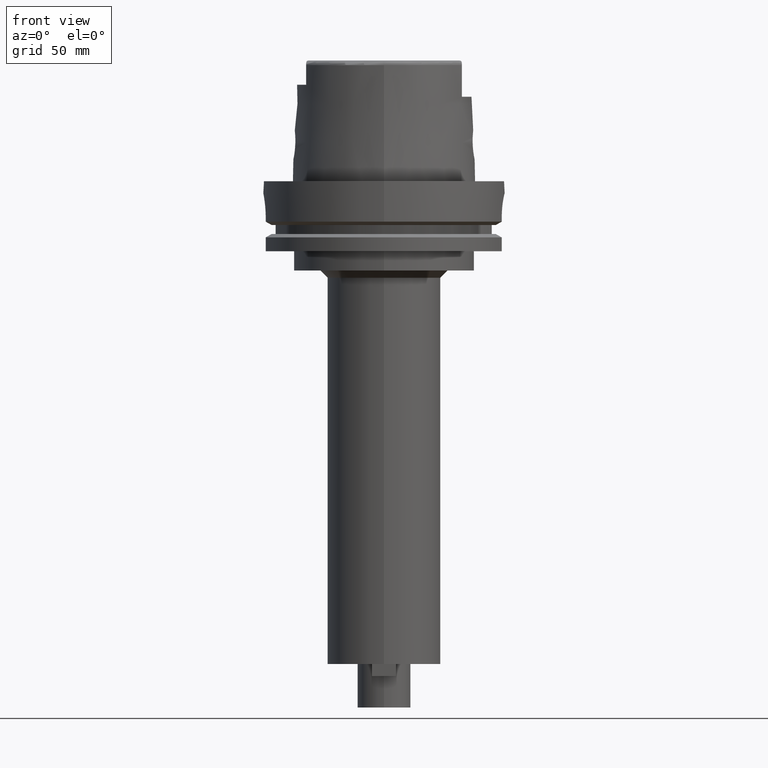
[diagram: clean part render]
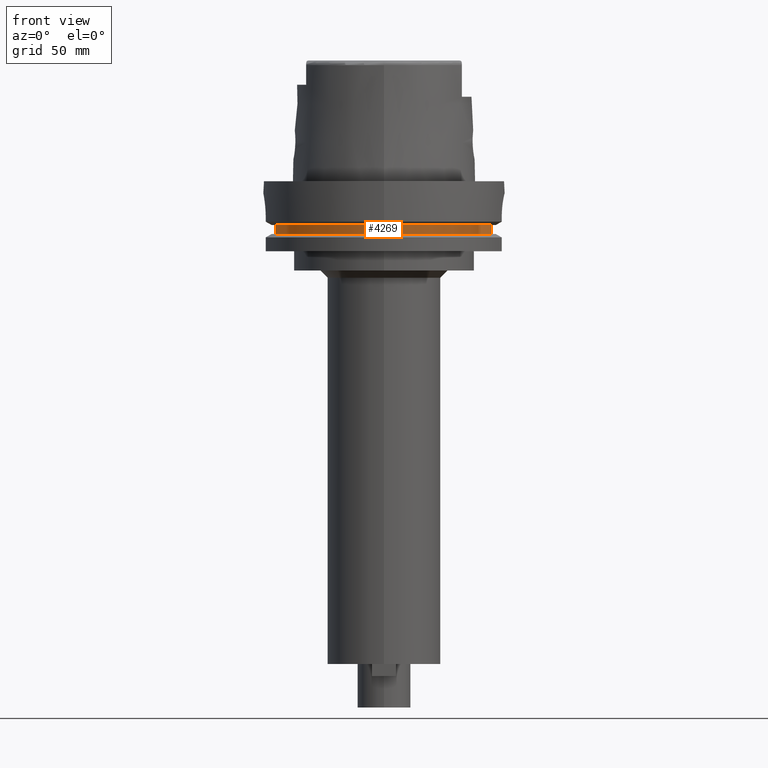
[diagram: same view with one face highlighted and labeled with its STEP entity id]
A machine part, front view. The second image highlights one B-rep face of the part: STEP entity #4269.
In plain terms, the highlighted cylindrical surface (partial cylindrical patch) has radius 46 mm, axis along (0, 0, 1).
Its self-contained STEP definition (entity closure, byte-faithful):
#1936=CARTESIAN_POINT('',(0.E0,0.E0,-1.8125E1));
#1937=DIRECTION('',(0.E0,0.E0,-1.E0));
#1938=DIRECTION('',(9.709874536577E-1,-2.391304347826E-1,0.E0));
#1939=AXIS2_PLACEMENT_3D('',#1936,#1937,#1938);
#1944=CARTESIAN_POINT('',(0.E0,0.E0,-1.8125E1));
#1945=DIRECTION('',(0.E0,0.E0,-1.E0));
#1946=DIRECTION('',(0.E0,-1.E0,0.E0));
#1947=AXIS2_PLACEMENT_3D('',#1944,#1945,#1946);
#1952=DIRECTION('',(0.E0,0.E0,1.E0));
#1953=VECTOR('',#1952,3.75E0);
#1954=CARTESIAN_POINT('',(-4.489988864129E1,-1.E1,-2.1875E1));
#1955=LINE('',#1954,#1953);
#1959=DIRECTION('',(-1.136868377216E-14,0.E0,-1.E0));
#1960=VECTOR('',#1959,3.75E0);
#1961=CARTESIAN_POINT('',(4.466542286825E1,-1.1E1,-1.8125E1));
#1962=LINE('',#1961,#1960);
#1966=CARTESIAN_POINT('',(0.E0,0.E0,-2.1875E1));
#1967=DIRECTION('',(0.E0,0.E0,1.E0));
#1968=DIRECTION('',(-9.760845356802E-1,-2.173913043478E-1,0.E0));
#1969=AXIS2_PLACEMENT_3D('',#1966,#1967,#1968);
#1974=CARTESIAN_POINT('',(0.E0,0.E0,-2.1875E1));
#1975=DIRECTION('',(0.E0,0.E0,1.E0));
#1976=DIRECTION('',(0.E0,-1.E0,0.E0));
#1977=AXIS2_PLACEMENT_3D('',#1974,#1975,#1976);
#2705=CARTESIAN_POINT('',(-4.489988864129E1,-1.E1,-1.8125E1));
#2706=VERTEX_POINT('',#2705);
#2707=CARTESIAN_POINT('',(-4.489988864129E1,-1.E1,-2.1875E1));
#2708=VERTEX_POINT('',#2707);
#2733=CARTESIAN_POINT('',(0.E0,-4.6E1,-2.1875E1));
#2734=CARTESIAN_POINT('',(4.466542286825E1,-1.1E1,-2.1875E1));
#2735=VERTEX_POINT('',#2733);
#2736=VERTEX_POINT('',#2734);
#2743=CARTESIAN_POINT('',(0.E0,-4.6E1,-1.8125E1));
#2744=VERTEX_POINT('',#2743);
#2745=CARTESIAN_POINT('',(4.466542286825E1,-1.1E1,-1.8125E1));
#2746=VERTEX_POINT('',#2745);
#4254=CARTESIAN_POINT('',(0.E0,0.E0,-2.314E2));
#4255=DIRECTION('',(0.E0,0.E0,1.E0));
#4256=DIRECTION('',(0.E0,1.E0,0.E0));
#4257=AXIS2_PLACEMENT_3D('',#4254,#4255,#4256);
#4258=CYLINDRICAL_SURFACE('',#4257,4.6E1);
#4259=ORIENTED_EDGE('',*,*,#3952,.T.);
#4260=ORIENTED_EDGE('',*,*,#4249,.F.);
#4261=ORIENTED_EDGE('',*,*,#4247,.F.);
#4262=ORIENTED_EDGE('',*,*,#3905,.T.);
#4264=ORIENTED_EDGE('',*,*,#4263,.F.);
#4266=ORIENTED_EDGE('',*,*,#4265,.F.);
#4267=EDGE_LOOP('',(#4259,#4260,#4261,#4262,#4264,#4266));
#4268=FACE_OUTER_BOUND('',#4267,.F.);
#1940=CIRCLE('',#1939,4.6E1);
#1948=CIRCLE('',#1947,4.6E1);
#1970=CIRCLE('',#1969,4.6E1);
#1978=CIRCLE('',#1977,4.6E1);
#3905=EDGE_CURVE('',#2746,#2736,#1962,.T.);
#3952=EDGE_CURVE('',#2708,#2706,#1955,.T.);
#4247=EDGE_CURVE('',#2746,#2744,#1940,.T.);
#4249=EDGE_CURVE('',#2744,#2706,#1948,.T.);
#4263=EDGE_CURVE('',#2735,#2736,#1978,.T.);
#4265=EDGE_CURVE('',#2708,#2735,#1970,.T.);
#4269=ADVANCED_FACE('',(#4268),#4258,.T.);